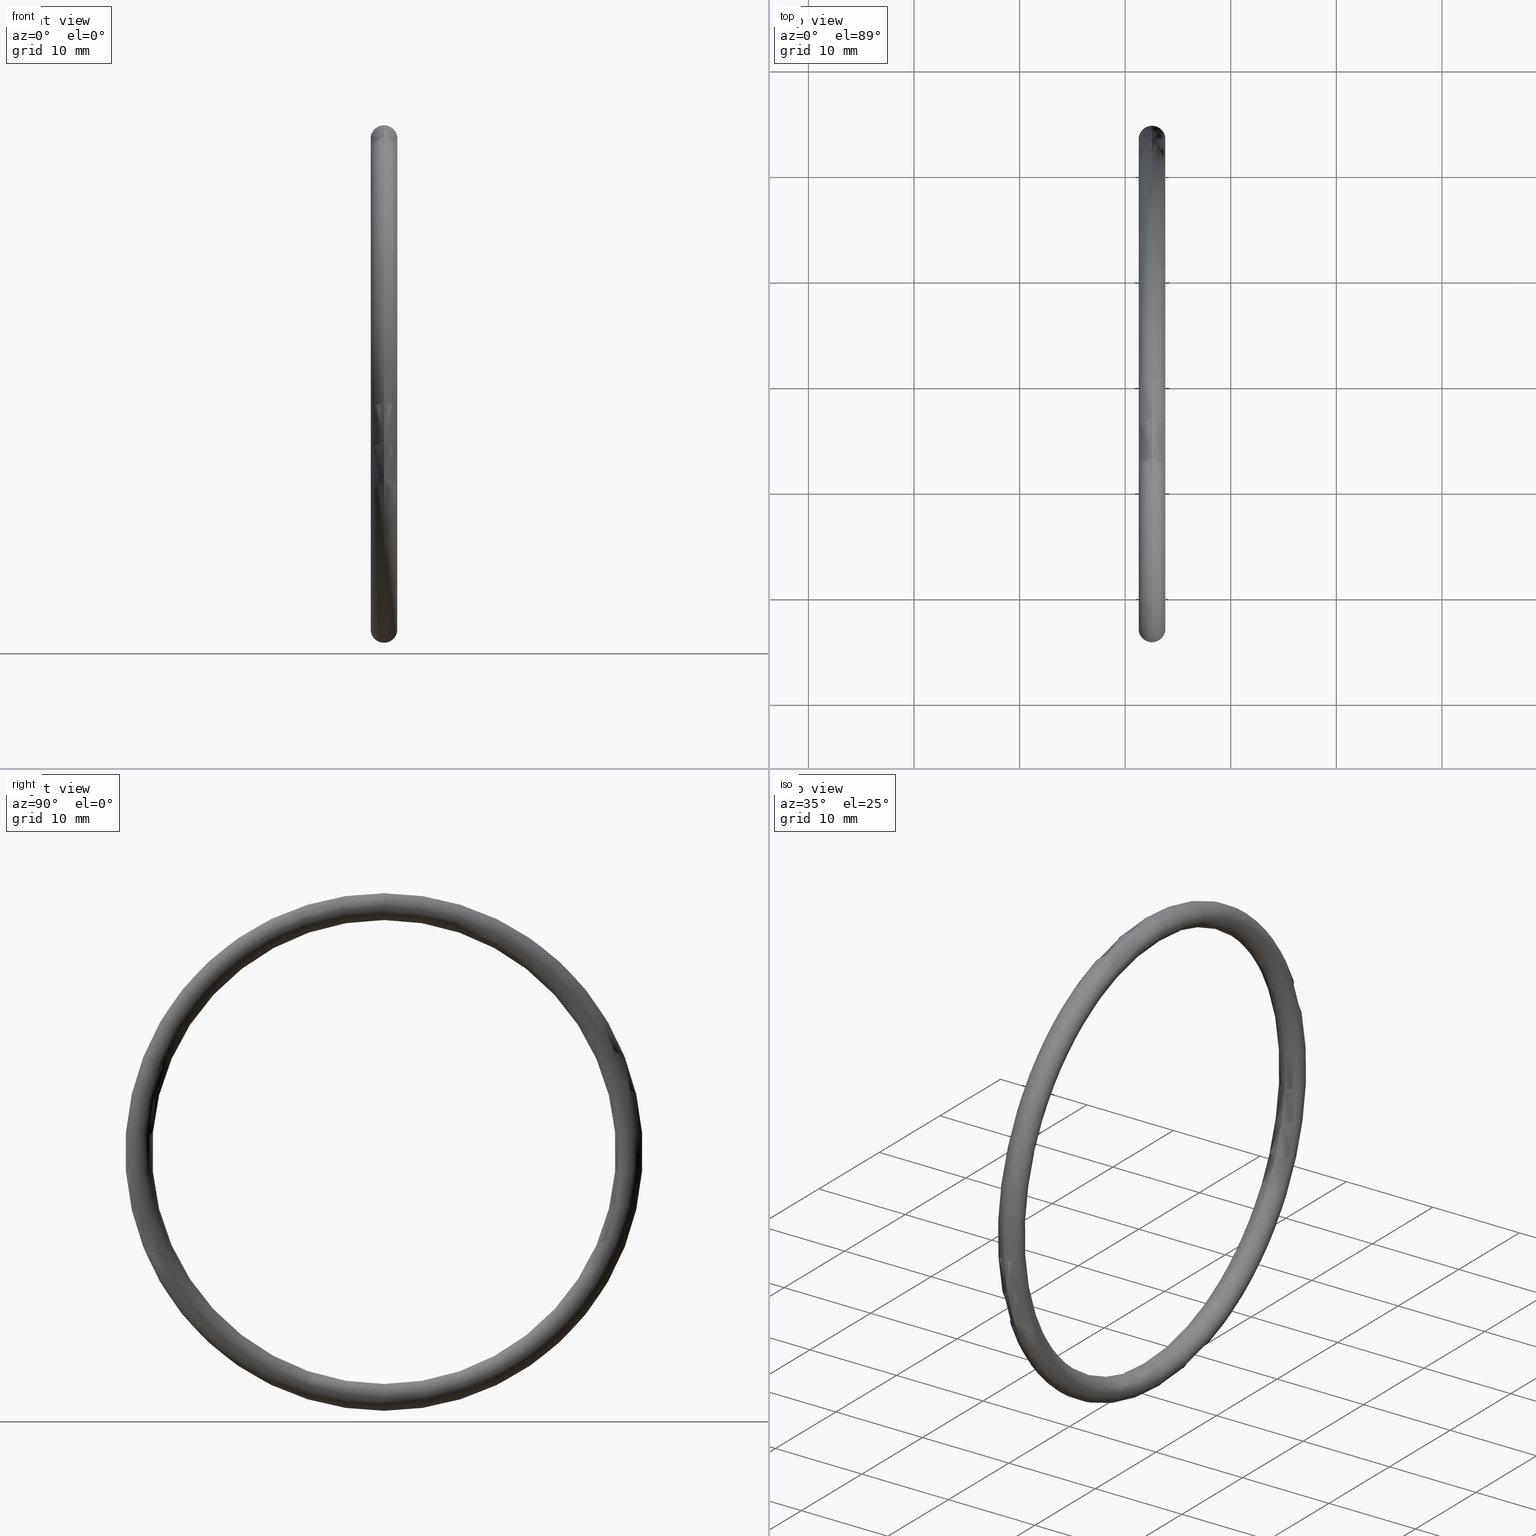
[diagram: canonical four-view strip — front | top / right | iso, engineering-drawing reading convention]
A machine part, canonical four-view strip (front | top / right | iso — engineering-drawing reading convention). The complete STEP part file that produces these views, byte-faithful:
ISO-10303-21;
HEADER;
FILE_DESCRIPTION (( 'STEP AP203' ),
    '1' );
FILE_NAME ('OR-36-BNOR-64-BN.STEP',
    '2008-03-29T09:59:12',
    ( 'Baystate-05' ),
    ( 'BayState InfoTech' ),
    'SwSTEP 2.0',
    'SolidWorks 2007',
    '' );
FILE_SCHEMA (( 'CONFIG_CONTROL_DESIGN' ));
ENDSEC;

DATA;
#1 = EDGE_LOOP ( 'NONE', ( #2, #3, #4, #5 ) ) ;
#2 = ORIENTED_EDGE ( 'NONE', *, *, #16, .F. ) ;
#3 = ORIENTED_EDGE ( 'NONE', *, *, #58, .F. ) ;
#4 = ORIENTED_EDGE ( 'NONE', *, *, #21, .T. ) ;
#5 = ORIENTED_EDGE ( 'NONE', *, *, #54, .T. ) ;
#6 = CLOSED_SHELL ( 'NONE', ( #45, #38, #7, #59 ) ) ;
#7 = ADVANCED_FACE ( 'NONE', ( #15 ), #13, .T. ) ;
#8 = EDGE_CURVE ( 'NONE', #19, #50, #35, .T. ) ;
#9 = ORIENTED_EDGE ( 'NONE', *, *, #8, .F. ) ;
#10 = ORIENTED_EDGE ( 'NONE', *, *, #42, .F. ) ;
#11 = DIRECTION ( 'NONE',  ( -1.000000000000000000, 0.0000000000000000000, 0.0000000000000000000 ) ) ;
#12 = AXIS2_PLACEMENT_3D ( 'NONE', #14, #11, #37 ) ;
#13 = TOROIDAL_SURFACE ( 'NONE', #12, 0.9149999999999999200, 0.05000000000000000300 ) ;
#14 = CARTESIAN_POINT ( 'NONE',  ( 0.1000000000000001200, 0.0000000000000000000, 0.0000000000000000000 ) ) ;
#15 = FACE_OUTER_BOUND ( 'NONE', #56, .T. ) ;
#16 = EDGE_CURVE ( 'NONE', #49, #52, #29, .T. ) ;
#17 = ORIENTED_EDGE ( 'NONE', *, *, #18, .T. ) ;
#18 = EDGE_CURVE ( 'NONE', #52, #19, #25, .T. ) ;
#19 = VERTEX_POINT ( 'NONE', #152 ) ;
#20 = ORIENTED_EDGE ( 'NONE', *, *, #21, .F. ) ;
#21 = EDGE_CURVE ( 'NONE', #50, #19, #179, .T. ) ;
#22 = DIRECTION ( 'NONE',  ( 0.0000000000000000000, 0.0000000000000000000, -1.000000000000000000 ) ) ;
#23 = DIRECTION ( 'NONE',  ( 0.0000000000000000000, -1.000000000000000000, 0.0000000000000000000 ) ) ;
#24 = AXIS2_PLACEMENT_3D ( 'NONE', #30, #23, #22 ) ;
#25 = CIRCLE ( 'NONE', #24, 0.05000000000000001000 ) ;
#26 = DIRECTION ( 'NONE',  ( 0.0000000000000000000, 0.0000000000000000000, 1.000000000000000000 ) ) ;
#27 = DIRECTION ( 'NONE',  ( -1.000000000000000000, 0.0000000000000000000, 0.0000000000000000000 ) ) ;
#28 = AXIS2_PLACEMENT_3D ( 'NONE', #36, #27, #26 ) ;
#29 = CIRCLE ( 'NONE', #28, 0.9649999999999999700 ) ;
#30 = CARTESIAN_POINT ( 'NONE',  ( 0.1000000000000001200, 0.0000000000000000000, 0.9149999999999999200 ) ) ;
#31 = DIRECTION ( 'NONE',  ( 0.0000000000000000000, 0.0000000000000000000, 1.000000000000000000 ) ) ;
#32 = DIRECTION ( 'NONE',  ( -1.000000000000000000, 0.0000000000000000000, 0.0000000000000000000 ) ) ;
#33 = CARTESIAN_POINT ( 'NONE',  ( 0.1000000000000001200, 0.0000000000000000000, 0.0000000000000000000 ) ) ;
#34 = AXIS2_PLACEMENT_3D ( 'NONE', #33, #32, #31 ) ;
#35 = CIRCLE ( 'NONE', #34, 0.8649999999999998800 ) ;
#36 = CARTESIAN_POINT ( 'NONE',  ( 0.1000000000000001200, 0.0000000000000000000, 0.0000000000000000000 ) ) ;
#37 = DIRECTION ( 'NONE',  ( 0.0000000000000000000, 0.0000000000000000000, 1.000000000000000000 ) ) ;
#38 = ADVANCED_FACE ( 'NONE', ( #150 ), #148, .T. ) ;
#39 = EDGE_LOOP ( 'NONE', ( #40, #41, #43, #9 ) ) ;
#40 = ORIENTED_EDGE ( 'NONE', *, *, #18, .F. ) ;
#41 = ORIENTED_EDGE ( 'NONE', *, *, #42, .T. ) ;
#42 = EDGE_CURVE ( 'NONE', #52, #49, #66, .T. ) ;
#43 = ORIENTED_EDGE ( 'NONE', *, *, #48, .T. ) ;
#44 = MANIFOLD_SOLID_BREP ( 'NONE', #6 ) ;
#45 = ADVANCED_FACE ( 'NONE', ( #100 ), #99, .T. ) ;
#46 = EDGE_LOOP ( 'NONE', ( #47, #51, #17, #20 ) ) ;
#47 = ORIENTED_EDGE ( 'NONE', *, *, #48, .F. ) ;
#48 = EDGE_CURVE ( 'NONE', #49, #50, #94, .T. ) ;
#49 = VERTEX_POINT ( 'NONE', #89 ) ;
#50 = VERTEX_POINT ( 'NONE', #88 ) ;
#51 = ORIENTED_EDGE ( 'NONE', *, *, #16, .T. ) ;
#52 = VERTEX_POINT ( 'NONE', #87 ) ;
#53 = ORIENTED_EDGE ( 'NONE', *, *, #54, .F. ) ;
#54 = EDGE_CURVE ( 'NONE', #19, #52, #85, .T. ) ;
#55 = ORIENTED_EDGE ( 'NONE', *, *, #8, .T. ) ;
#56 = EDGE_LOOP ( 'NONE', ( #10, #53, #55, #57 ) ) ;
#57 = ORIENTED_EDGE ( 'NONE', *, *, #58, .T. ) ;
#58 = EDGE_CURVE ( 'NONE', #50, #49, #80, .T. ) ;
#59 = ADVANCED_FACE ( 'NONE', ( #76 ), #75, .T. ) ;
#60 = PERSON ( 'UNSPECIFIED', 'UNSPECIFIED', 'UNSPECIFIED', ('UNSPECIFIED'), ('UNSPECIFIED'), ('UNSPECIFIED') ) ;
#61 = PRODUCT ( 'OR-36-BNOR-64-BN', 'OR-36-BNOR-64-BN', '', ( #62 ) ) ;
#62 = MECHANICAL_CONTEXT ( 'NONE', #64, 'mechanical' ) ;
#63 = APPLICATION_PROTOCOL_DEFINITION ( 'international standard', 'config_control_design', 1994, #64 ) ;
#64 = APPLICATION_CONTEXT ( 'configuration controlled 3d designs of mechanical parts and assemblies' ) ;
#65 = AXIS2_PLACEMENT_3D ( 'NONE', #103, #102, #101 ) ;
#66 = CIRCLE ( 'NONE', #65, 0.9649999999999999700 ) ;
#67 = DIRECTION ( 'NONE',  ( 0.0000000000000000000, 0.0000000000000000000, 1.000000000000000000 ) ) ;
#68 = DIRECTION ( 'NONE',  ( -1.000000000000000000, 0.0000000000000000000, 0.0000000000000000000 ) ) ;
#69 = CARTESIAN_POINT ( 'NONE',  ( 0.1000000000000001200, 0.0000000000000000000, 0.0000000000000000000 ) ) ;
#70 = CARTESIAN_POINT ( 'NONE',  ( 0.0000000000000000000, 0.0000000000000000000, 0.0000000000000000000 ) ) ;
#71 = DIRECTION ( 'NONE',  ( 0.0000000000000000000, 0.0000000000000000000, 1.000000000000000000 ) ) ;
#72 = DIRECTION ( 'NONE',  ( -1.000000000000000000, 0.0000000000000000000, 0.0000000000000000000 ) ) ;
#73 = CARTESIAN_POINT ( 'NONE',  ( 0.1000000000000001200, 0.0000000000000000000, 0.0000000000000000000 ) ) ;
#74 = AXIS2_PLACEMENT_3D ( 'NONE', #73, #72, #71 ) ;
#75 = TOROIDAL_SURFACE ( 'NONE', #74, 0.9149999999999999200, 0.05000000000000000300 ) ;
#76 = FACE_OUTER_BOUND ( 'NONE', #1, .T. ) ;
#77 = DIRECTION ( 'NONE',  ( 0.0000000000000000000, -1.224646799147351700E-016, 1.000000000000000000 ) ) ;
#78 = DIRECTION ( 'NONE',  ( 0.0000000000000000000, 1.000000000000000000, 1.224646799147353200E-016 ) ) ;
#79 = AXIS2_PLACEMENT_3D ( 'NONE', #86, #78, #77 ) ;
#80 = CIRCLE ( 'NONE', #79, 0.05000000000000001000 ) ;
#81 = DIRECTION ( 'NONE',  ( 0.0000000000000000000, 0.0000000000000000000, -1.000000000000000000 ) ) ;
#82 = DIRECTION ( 'NONE',  ( 0.0000000000000000000, -1.000000000000000000, 0.0000000000000000000 ) ) ;
#83 = CARTESIAN_POINT ( 'NONE',  ( 0.1000000000000001200, 0.0000000000000000000, 0.9149999999999999200 ) ) ;
#84 = AXIS2_PLACEMENT_3D ( 'NONE', #83, #82, #81 ) ;
#85 = CIRCLE ( 'NONE', #84, 0.05000000000000001000 ) ;
#86 = CARTESIAN_POINT ( 'NONE',  ( 0.1000000000000001200, 1.120551821219828000E-016, -0.9149999999999999200 ) ) ;
#87 = CARTESIAN_POINT ( 'NONE',  ( 0.1000000000000001200, 0.0000000000000000000, 0.9649999999999999700 ) ) ;
#88 = CARTESIAN_POINT ( 'NONE',  ( 0.1000000000000001200, 1.059319481262460500E-016, -0.8649999999999998800 ) ) ;
#89 = CARTESIAN_POINT ( 'NONE',  ( 0.1000000000000001200, 1.181784161177195800E-016, -0.9649999999999999700 ) ) ;
#90 = DIRECTION ( 'NONE',  ( 0.0000000000000000000, -1.224646799147351700E-016, 1.000000000000000000 ) ) ;
#91 = DIRECTION ( 'NONE',  ( 0.0000000000000000000, 1.000000000000000000, 1.224646799147353200E-016 ) ) ;
#92 = CARTESIAN_POINT ( 'NONE',  ( 0.1000000000000001200, 1.120551821219828000E-016, -0.9149999999999999200 ) ) ;
#93 = AXIS2_PLACEMENT_3D ( 'NONE', #92, #91, #90 ) ;
#94 = CIRCLE ( 'NONE', #93, 0.05000000000000001000 ) ;
#95 = DIRECTION ( 'NONE',  ( 0.0000000000000000000, 0.0000000000000000000, 1.000000000000000000 ) ) ;
#96 = DIRECTION ( 'NONE',  ( -1.000000000000000000, 0.0000000000000000000, 0.0000000000000000000 ) ) ;
#97 = CARTESIAN_POINT ( 'NONE',  ( 0.1000000000000001200, 0.0000000000000000000, 0.0000000000000000000 ) ) ;
#98 = AXIS2_PLACEMENT_3D ( 'NONE', #97, #96, #95 ) ;
#99 = TOROIDAL_SURFACE ( 'NONE', #98, 0.9149999999999999200, 0.05000000000000000300 ) ;
#100 = FACE_OUTER_BOUND ( 'NONE', #46, .T. ) ;
#101 = DIRECTION ( 'NONE',  ( 0.0000000000000000000, 0.0000000000000000000, 1.000000000000000000 ) ) ;
#102 = DIRECTION ( 'NONE',  ( -1.000000000000000000, 0.0000000000000000000, 0.0000000000000000000 ) ) ;
#103 = CARTESIAN_POINT ( 'NONE',  ( 0.1000000000000001200, 0.0000000000000000000, 0.0000000000000000000 ) ) ;
#104 = SECURITY_CLASSIFICATION ( '', '', #105 ) ;
#105 = SECURITY_CLASSIFICATION_LEVEL ( 'unclassified' ) ;
#106 = CC_DESIGN_PERSON_AND_ORGANIZATION_ASSIGNMENT ( #108, #107, ( #188 ) ) ;
#107 = PERSON_AND_ORGANIZATION_ROLE ( 'design_supplier' ) ;
#108 = PERSON_AND_ORGANIZATION ( #60, #147 ) ;
#109 = CC_DESIGN_PERSON_AND_ORGANIZATION_ASSIGNMENT ( #111, #110, ( #188 ) ) ;
#110 = PERSON_AND_ORGANIZATION_ROLE ( 'creator' ) ;
#111 = PERSON_AND_ORGANIZATION ( #60, #147 ) ;
#112 = CC_DESIGN_APPROVAL ( #120, ( #188 ) ) ;
#113 = APPROVAL_DATE_TIME ( #114, #120 ) ;
#114 = DATE_AND_TIME ( #115, #116 ) ;
#115 = CALENDAR_DATE ( 2008, 29, 3 ) ;
#116 = LOCAL_TIME ( 15, 29, 12.00000000000000000, #117 ) ;
#117 = COORDINATED_UNIVERSAL_TIME_OFFSET ( 5, 30, .AHEAD. ) ;
#118 = APPROVAL_PERSON_ORGANIZATION ( #122, #120, #119 ) ;
#119 = APPROVAL_ROLE ( '' ) ;
#120 = APPROVAL ( #121, 'UNSPECIFIED' ) ;
#121 = APPROVAL_STATUS ( 'not_yet_approved' ) ;
#122 = PERSON_AND_ORGANIZATION ( #60, #147 ) ;
#123 =( NAMED_UNIT ( * ) PLANE_ANGLE_UNIT ( ) SI_UNIT ( $, .RADIAN. ) );
#124 =( CONVERSION_BASED_UNIT ( 'INCH', #125 ) LENGTH_UNIT ( ) NAMED_UNIT ( #126 ) );
#125 = LENGTH_MEASURE_WITH_UNIT ( LENGTH_MEASURE( 0.02539999999999999900 ), #127 );
#126 = DIMENSIONAL_EXPONENTS ( 1.000000000000000000, 0.0000000000000000000, 0.0000000000000000000, 0.0000000000000000000, 0.0000000000000000000, 0.0000000000000000000, 0.0000000000000000000 ) ;
#127 =( LENGTH_UNIT ( ) NAMED_UNIT ( * ) SI_UNIT ( $, .METRE. ) );
#128 = PERSON_AND_ORGANIZATION ( #60, #147 ) ;
#129 = CC_DESIGN_APPROVAL ( #137, ( #140 ) ) ;
#130 = APPROVAL_DATE_TIME ( #131, #137 ) ;
#131 = DATE_AND_TIME ( #132, #133 ) ;
#132 = CALENDAR_DATE ( 2008, 29, 3 ) ;
#133 = LOCAL_TIME ( 15, 29, 12.00000000000000000, #134 ) ;
#134 = COORDINATED_UNIVERSAL_TIME_OFFSET ( 5, 30, .AHEAD. ) ;
#135 = APPROVAL_PERSON_ORGANIZATION ( #139, #137, #136 ) ;
#136 = APPROVAL_ROLE ( '' ) ;
#137 = APPROVAL ( #138, 'UNSPECIFIED' ) ;
#138 = APPROVAL_STATUS ( 'not_yet_approved' ) ;
#139 = PERSON_AND_ORGANIZATION ( #60, #147 ) ;
#140 = PRODUCT_DEFINITION ( 'UNKNOWN', '', #188, #141 ) ;
#141 = DESIGN_CONTEXT ( 'detailed design', #143, 'design' ) ;
#142 = APPLICATION_PROTOCOL_DEFINITION ( 'international standard', 'config_control_design', 1994, #143 ) ;
#143 = APPLICATION_CONTEXT ( 'configuration controlled 3d designs of mechanical parts and assemblies' ) ;
#144 = CC_DESIGN_PERSON_AND_ORGANIZATION_ASSIGNMENT ( #146, #145, ( #61 ) ) ;
#145 = PERSON_AND_ORGANIZATION_ROLE ( 'design_owner' ) ;
#146 = PERSON_AND_ORGANIZATION ( #60, #147 ) ;
#147 = ORGANIZATION ( 'UNSPECIFIED', 'UNSPECIFIED', '' ) ;
#148 = TOROIDAL_SURFACE ( 'NONE', #149, 0.9149999999999999200, 0.05000000000000000300 ) ;
#149 = AXIS2_PLACEMENT_3D ( 'NONE', #69, #68, #67 ) ;
#150 = FACE_OUTER_BOUND ( 'NONE', #39, .T. ) ;
#151 = DIRECTION ( 'NONE',  ( 0.0000000000000000000, 0.0000000000000000000, 1.000000000000000000 ) ) ;
#152 = CARTESIAN_POINT ( 'NONE',  ( 0.1000000000000001200, 0.0000000000000000000, 0.8649999999999998800 ) ) ;
#153 = CARTESIAN_POINT ( 'NONE',  ( 0.1000000000000001200, 0.0000000000000000000, 0.0000000000000000000 ) ) ;
#154 = PRODUCT_DEFINITION_SHAPE ( 'NONE', 'NONE',  #140 ) ;
#155 = PRODUCT_RELATED_PRODUCT_CATEGORY ( 'detail', '', ( #61 ) ) ;
#156 = CC_DESIGN_SECURITY_CLASSIFICATION ( #104, ( #188 ) ) ;
#157 = CC_DESIGN_APPROVAL ( #165, ( #104 ) ) ;
#158 = APPROVAL_DATE_TIME ( #159, #165 ) ;
#159 = DATE_AND_TIME ( #160, #161 ) ;
#160 = CALENDAR_DATE ( 2008, 29, 3 ) ;
#161 = LOCAL_TIME ( 15, 29, 12.00000000000000000, #162 ) ;
#162 = COORDINATED_UNIVERSAL_TIME_OFFSET ( 5, 30, .AHEAD. ) ;
#163 = APPROVAL_PERSON_ORGANIZATION ( #167, #165, #164 ) ;
#164 = APPROVAL_ROLE ( '' ) ;
#165 = APPROVAL ( #166, 'UNSPECIFIED' ) ;
#166 = APPROVAL_STATUS ( 'not_yet_approved' ) ;
#167 = PERSON_AND_ORGANIZATION ( #60, #147 ) ;
#168 = CC_DESIGN_DATE_AND_TIME_ASSIGNMENT ( #170, #169, ( #104 ) ) ;
#169 = DATE_TIME_ROLE ( 'classification_date' ) ;
#170 = DATE_AND_TIME ( #171, #172 ) ;
#171 = CALENDAR_DATE ( 2008, 29, 3 ) ;
#172 = LOCAL_TIME ( 15, 29, 12.00000000000000000, #173 ) ;
#173 = COORDINATED_UNIVERSAL_TIME_OFFSET ( 5, 30, .AHEAD. ) ;
#174 = CC_DESIGN_PERSON_AND_ORGANIZATION_ASSIGNMENT ( #176, #175, ( #104 ) ) ;
#175 = PERSON_AND_ORGANIZATION_ROLE ( 'classification_officer' ) ;
#176 = PERSON_AND_ORGANIZATION ( #60, #147 ) ;
#177 = DIRECTION ( 'NONE',  ( -1.000000000000000000, 0.0000000000000000000, 0.0000000000000000000 ) ) ;
#178 = AXIS2_PLACEMENT_3D ( 'NONE', #153, #177, #151 ) ;
#179 = CIRCLE ( 'NONE', #178, 0.8649999999999998800 ) ;
#180 = DIRECTION ( 'NONE',  ( 0.0000000000000000000, 0.0000000000000000000, 1.000000000000000000 ) ) ;
#181 = AXIS2_PLACEMENT_3D ( 'NONE', #70, #180, #183 ) ;
#182 = SHAPE_DEFINITION_REPRESENTATION ( #154, #184 ) ;
#183 = DIRECTION ( 'NONE',  ( 1.000000000000000000, 0.0000000000000000000, 0.0000000000000000000 ) ) ;
#184 = ADVANCED_BREP_SHAPE_REPRESENTATION ( 'OR-36-BNOR-64-BN', ( #44, #181 ), #185 ) ;
#185 =( GEOMETRIC_REPRESENTATION_CONTEXT ( 3 ) GLOBAL_UNCERTAINTY_ASSIGNED_CONTEXT ( ( #186 ) ) GLOBAL_UNIT_ASSIGNED_CONTEXT ( ( #124, #123, #187 ) ) REPRESENTATION_CONTEXT ( 'NONE', 'WORKASPACE' ) );
#186 = UNCERTAINTY_MEASURE_WITH_UNIT (LENGTH_MEASURE( 1.000000000000000100E-005 ), #124, 'distance_accuracy_value', 'NONE');
#187 =( NAMED_UNIT ( * ) SI_UNIT ( $, .STERADIAN. ) SOLID_ANGLE_UNIT ( ) );
#188 = PRODUCT_DEFINITION_FORMATION_WITH_SPECIFIED_SOURCE ( 'ANY', '', #61, .NOT_KNOWN. ) ;
#189 = CC_DESIGN_DATE_AND_TIME_ASSIGNMENT ( #191, #190, ( #140 ) ) ;
#190 = DATE_TIME_ROLE ( 'creation_date' ) ;
#191 = DATE_AND_TIME ( #192, #193 ) ;
#192 = CALENDAR_DATE ( 2008, 29, 3 ) ;
#193 = LOCAL_TIME ( 15, 29, 12.00000000000000000, #194 ) ;
#194 = COORDINATED_UNIVERSAL_TIME_OFFSET ( 5, 30, .AHEAD. ) ;
#195 = CC_DESIGN_PERSON_AND_ORGANIZATION_ASSIGNMENT ( #128, #196, ( #140 ) ) ;
#196 = PERSON_AND_ORGANIZATION_ROLE ( 'creator' ) ;
ENDSEC;
END-ISO-10303-21;
